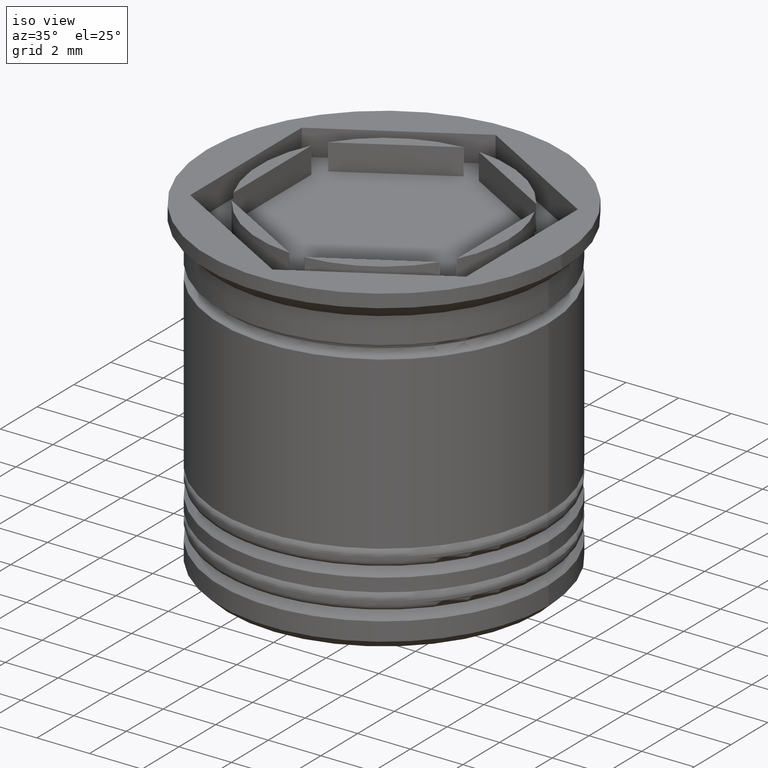
[diagram: clean part render]
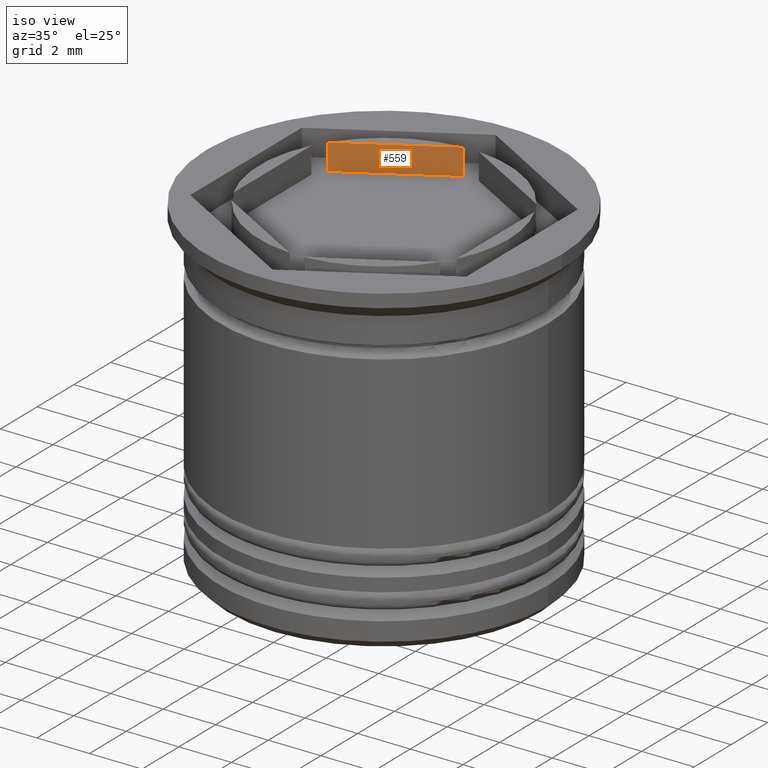
[diagram: same view with one face highlighted and labeled with its STEP entity id]
A machine part, iso view. The second image highlights one B-rep face of the part: STEP entity #559.
In plain terms, the highlighted planar face has unit normal (-0.5, 0.866, 0).
Its self-contained STEP definition (entity closure, byte-faithful):
#20 = CARTESIAN_POINT ( 'NONE',  ( -3.962117307087381857, 2.619947794304041455, 0.000000000000000000 ) ) ;
#60 = DIRECTION ( 'NONE',  ( -0.5000000000000001110, 0.8660254037844385966, 0.000000000000000000 ) ) ;
#74 = VERTEX_POINT ( 'NONE', #20 ) ;
#136 = EDGE_CURVE ( 'NONE', #629, #74, #994, .T. ) ;
#179 = VERTEX_POINT ( 'NONE', #256 ) ;
#185 = PLANE ( 'NONE',  #1840 ) ;
#256 = CARTESIAN_POINT ( 'NONE',  ( -3.962117307087383633, 2.619947794304040567, -1.000000000000000888 ) ) ;
#313 = CARTESIAN_POINT ( 'NONE',  ( -0.2878826929126153678, 4.741268137863683840, -1.000000000000000888 ) ) ;
#401 = CARTESIAN_POINT ( 'NONE',  ( -0.2878826929126119816, 4.741268137863684728, -1.000000000000000000 ) ) ;
#507 = LINE ( 'NONE', #401, #641 ) ;
#559 = ADVANCED_FACE ( 'NONE', ( #1727 ), #185, .F. ) ;
#629 = VERTEX_POINT ( 'NONE', #1138 ) ;
#636 = DIRECTION ( 'NONE',  ( -0.8660254037844385966, -0.5000000000000001110, 0.000000000000000000 ) ) ;
#641 = VECTOR ( 'NONE', #1018, 1000.000000000000000 ) ;
#726 = ORIENTED_EDGE ( 'NONE', *, *, #1065, .T. ) ;
#794 = CARTESIAN_POINT ( 'NONE',  ( 0.000000000000000000, 4.907477288111817160, -13.98396446904154011 ) ) ;
#825 = ORIENTED_EDGE ( 'NONE', *, *, #136, .T. ) ;
#858 = ORIENTED_EDGE ( 'NONE', *, *, #1205, .T. ) ;
#868 = LINE ( 'NONE', #1632, #932 ) ;
#890 = ORIENTED_EDGE ( 'NONE', *, *, #1821, .T. ) ;
#931 = LINE ( 'NONE', #1546, #1813 ) ;
#932 = VECTOR ( 'NONE', #1653, 1000.000000000000114 ) ;
#994 = LINE ( 'NONE', #1601, #1241 ) ;
#1018 = DIRECTION ( 'NONE',  ( -0.000000000000000000, -0.000000000000000000, 1.000000000000000000 ) ) ;
#1024 = DIRECTION ( 'NONE',  ( -0.8660254037844385966, -0.5000000000000001110, -0.000000000000000000 ) ) ;
#1065 = EDGE_CURVE ( 'NONE', #74, #179, #931, .T. ) ;
#1138 = CARTESIAN_POINT ( 'NONE',  ( -0.2878826929126157008, 4.741268137863684728, 0.000000000000000000 ) ) ;
#1139 = EDGE_LOOP ( 'NONE', ( #726, #858, #890, #825 ) ) ;
#1205 = EDGE_CURVE ( 'NONE', #179, #1416, #868, .T. ) ;
#1241 = VECTOR ( 'NONE', #1024, 1000.000000000000114 ) ;
#1416 = VERTEX_POINT ( 'NONE', #313 ) ;
#1546 = CARTESIAN_POINT ( 'NONE',  ( -3.962117307087386298, 2.619947794304038347, -1.000000000000000000 ) ) ;
#1601 = CARTESIAN_POINT ( 'NONE',  ( -2.124999999999999112, 3.680607966083862426, 0.000000000000000000 ) ) ;
#1632 = CARTESIAN_POINT ( 'NONE',  ( 0.000000000000000000, 4.907477288111817160, -1.000000000000000888 ) ) ;
#1653 = DIRECTION ( 'NONE',  ( 0.8660254037844385966, 0.5000000000000001110, 0.000000000000000000 ) ) ;
#1727 = FACE_OUTER_BOUND ( 'NONE', #1139, .T. ) ;
#1813 = VECTOR ( 'NONE', #1863, 1000.000000000000000 ) ;
#1821 = EDGE_CURVE ( 'NONE', #1416, #629, #507, .T. ) ;
#1840 = AXIS2_PLACEMENT_3D ( 'NONE', #794, #60, #636 ) ;
#1863 = DIRECTION ( 'NONE',  ( 0.000000000000000000, 0.000000000000000000, -1.000000000000000000 ) ) ;